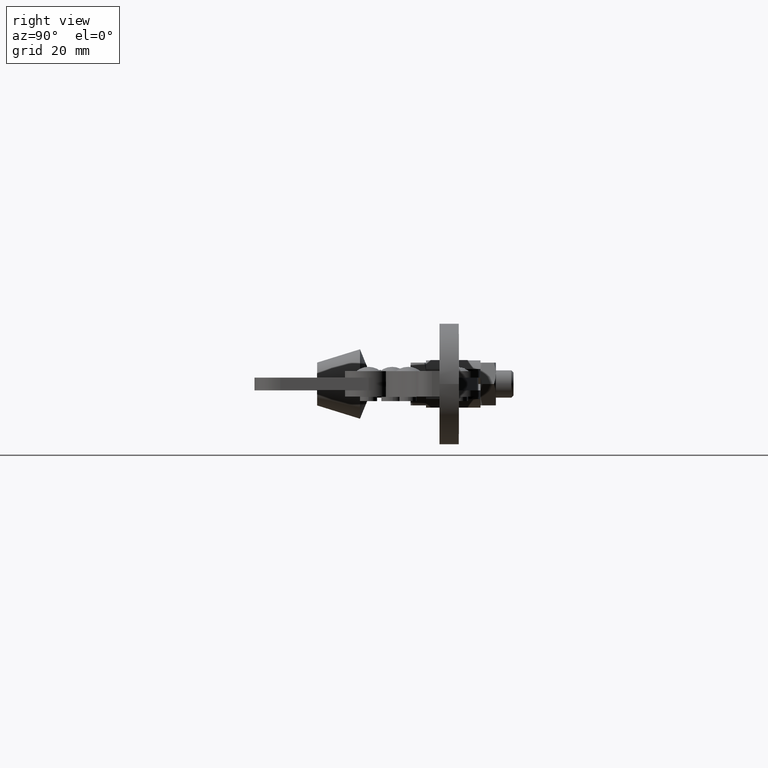
[diagram: clean part render]
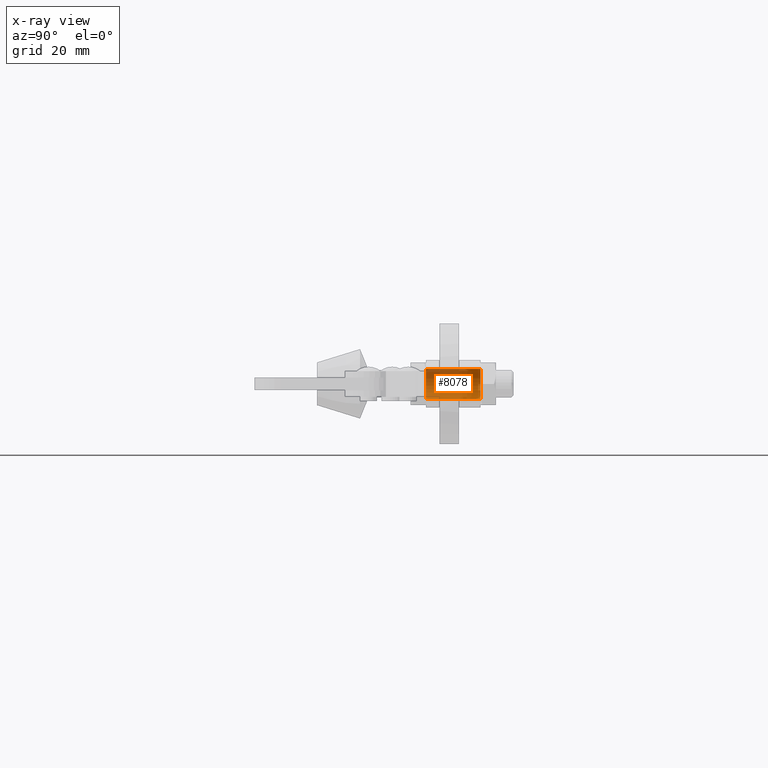
[diagram: x-ray — body ghosted, one internal face saturated and labeled with its STEP entity id]
A machine part, right view, then the same camera in x-ray: the body is ghosted and one INTERNAL B-rep face — a face not visible from any outside direction — is saturated and labeled: STEP entity #8078.
In plain terms, the highlighted cylindrical surface (edge-blend (fillet) strip) has radius 3.5 mm, axis along (-0, -1, -0).
Its self-contained STEP definition (entity closure, byte-faithful):
#30 = EDGE_CURVE ( 'NONE', #5227, #7014, #5898, .T. ) ;
#275 = CARTESIAN_POINT ( 'NONE',  ( -107.9735053749981400, 38.09999039117069200, -3.500000000000013300 ) ) ;
#580 = CARTESIAN_POINT ( 'NONE',  ( -107.9735045479252300, 25.39999039117069300, 3.499999999999887200 ) ) ;
#739 = DIRECTION ( 'NONE',  ( -1.302476995568923800E-007, 0.9999999999999915600, 9.695778398624885900E-017 ) ) ;
#1453 = CARTESIAN_POINT ( 'NONE',  ( -107.9735037208523500, 25.39999039117080300, -1.488450704651734900E-014 ) ) ;
#1464 = VERTEX_POINT ( 'NONE', #4393 ) ;
#1473 = DIRECTION ( 'NONE',  ( 1.302476995568923600E-007, -0.9999999999999914500, -9.695778398624884700E-017 ) ) ;
#1887 = CARTESIAN_POINT ( 'NONE',  ( -107.9735045479252900, 38.09999039117079900, 3.499999999999889000 ) ) ;
#1932 = EDGE_LOOP ( 'NONE', ( #5202, #6851, #4647, #4364 ) ) ;
#2558 = DIRECTION ( 'NONE',  ( 0.0000000000000000000, 0.0000000000000000000, -1.000000000000000000 ) ) ;
#2871 = CIRCLE ( 'NONE', #3942, 3.500000000000000000 ) ;
#3172 = CYLINDRICAL_SURFACE ( 'NONE', #4276, 3.500000000000000000 ) ;
#3213 = CARTESIAN_POINT ( 'NONE',  ( -107.9735053749981400, 38.09999039117069200, -1.365314318989198900E-014 ) ) ;
#3358 = EDGE_CURVE ( 'NONE', #5606, #7014, #5265, .T. ) ;
#3628 = DIRECTION ( 'NONE',  ( -1.302476995568923800E-007, 0.9999999999999915600, 9.695778398624885900E-017 ) ) ;
#3879 = DIRECTION ( 'NONE',  ( 1.302476995568923800E-007, -0.9999999999999915600, -9.695778398624885900E-017 ) ) ;
#3942 = AXIS2_PLACEMENT_3D ( 'NONE', #4665, #739, #5346 ) ;
#4190 = DIRECTION ( 'NONE',  ( 1.302476995568923600E-007, -0.9999999999999914500, -9.695778398624884700E-017 ) ) ;
#4276 = AXIS2_PLACEMENT_3D ( 'NONE', #3213, #3879, #2558 ) ;
#4364 = ORIENTED_EDGE ( 'NONE', *, *, #8362, .F. ) ;
#4393 = CARTESIAN_POINT ( 'NONE',  ( -107.9735045479252900, 38.09999039117080600, -3.499999999999915600 ) ) ;
#4556 = CARTESIAN_POINT ( 'NONE',  ( -107.9735053749981400, 38.09999039117069200, 3.499999999999986700 ) ) ;
#4647 = ORIENTED_EDGE ( 'NONE', *, *, #3358, .F. ) ;
#4665 = CARTESIAN_POINT ( 'NONE',  ( -107.9735053749981400, 38.09999039117069200, -1.365314318989198900E-014 ) ) ;
#5202 = ORIENTED_EDGE ( 'NONE', *, *, #7165, .T. ) ;
#5227 = VERTEX_POINT ( 'NONE', #1887 ) ;
#5265 = CIRCLE ( 'NONE', #7939, 3.500000000000000000 ) ;
#5346 = DIRECTION ( 'NONE',  ( 0.0000000000000000000, 0.0000000000000000000, 1.000000000000000000 ) ) ;
#5606 = VERTEX_POINT ( 'NONE', #6212 ) ;
#5673 = VECTOR ( 'NONE', #4190, 1000.000000000000100 ) ;
#5898 = LINE ( 'NONE', #4556, #5942 ) ;
#5942 = VECTOR ( 'NONE', #1473, 1000.000000000000100 ) ;
#6212 = CARTESIAN_POINT ( 'NONE',  ( -107.9735045479252300, 25.39999039117069300, -3.499999999999917000 ) ) ;
#6851 = ORIENTED_EDGE ( 'NONE', *, *, #30, .T. ) ;
#6947 = LINE ( 'NONE', #275, #5673 ) ;
#7014 = VERTEX_POINT ( 'NONE', #580 ) ;
#7165 = EDGE_CURVE ( 'NONE', #1464, #5227, #2871, .T. ) ;
#7454 = FACE_OUTER_BOUND ( 'NONE', #1932, .T. ) ;
#7939 = AXIS2_PLACEMENT_3D ( 'NONE', #1453, #3628, #8076 ) ;
#8076 = DIRECTION ( 'NONE',  ( 0.0000000000000000000, 0.0000000000000000000, 1.000000000000000000 ) ) ;
#8078 = ADVANCED_FACE ( 'NONE', ( #7454 ), #3172, .F. ) ;
#8362 = EDGE_CURVE ( 'NONE', #1464, #5606, #6947, .T. ) ;